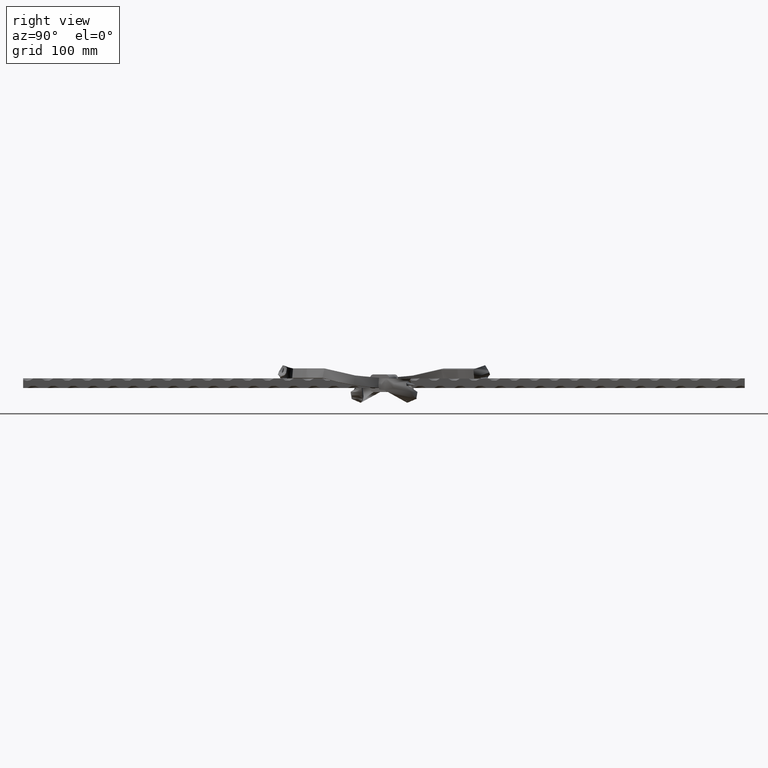
[diagram: clean part render]
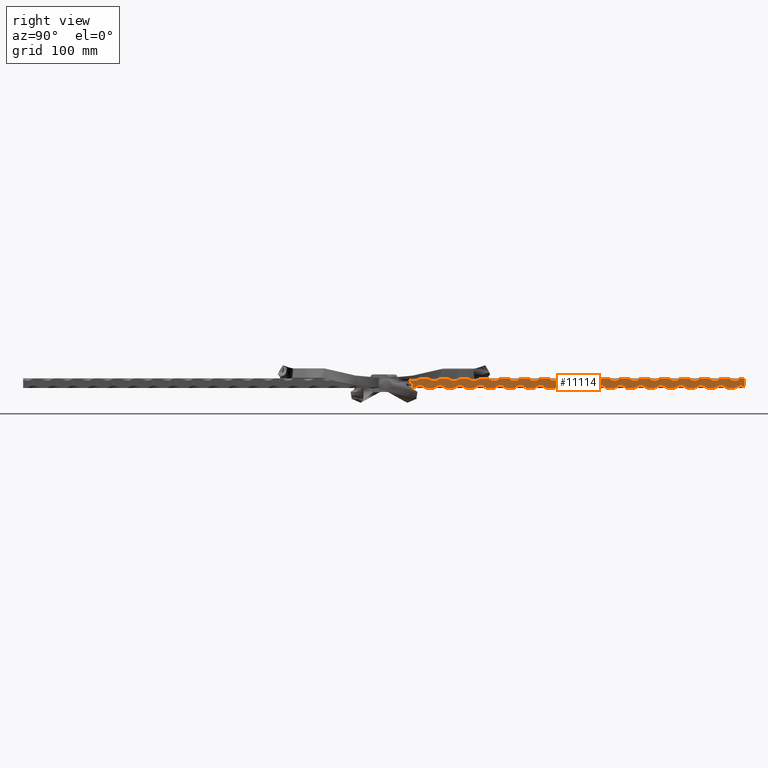
[diagram: same view with one face highlighted and labeled with its STEP entity id]
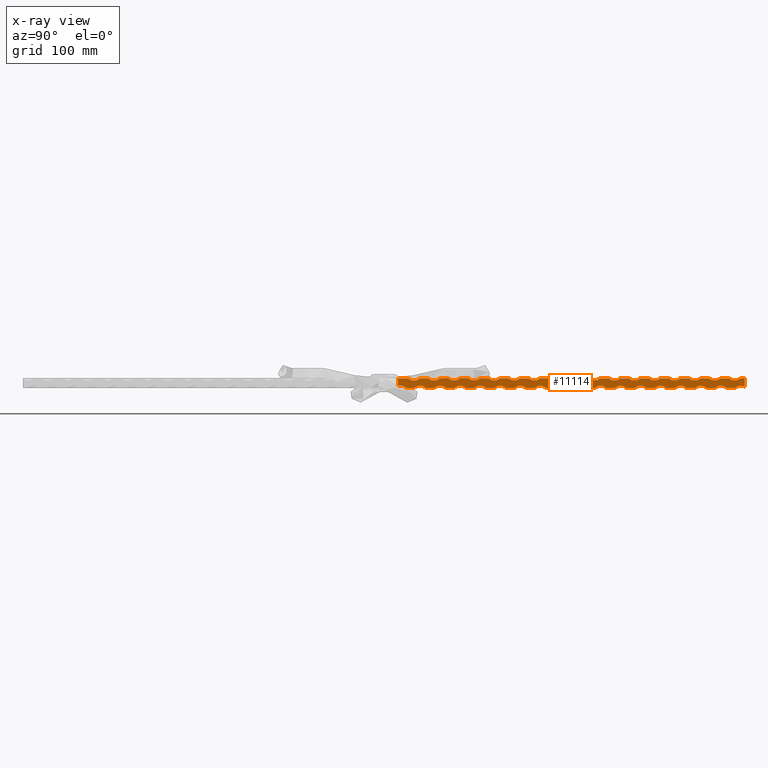
[diagram: x-ray of the same camera — body ghosted, the highlighted face saturated]
A machine part, right view. The second image highlights one B-rep face of the part: STEP entity #11114.
The next image is the same camera in x-ray: the body ghosted, the highlighted face saturated — about 0% of this face is hidden behind the body in this view.
In plain terms, the highlighted planar face has unit normal (-1, 0, 0).
Its self-contained STEP definition (entity closure, byte-faithful):
#22 = CARTESIAN_POINT ( 'NONE',  ( 5.999999999999996447, 29.99999999999997158, 6.000000000000000000 ) ) ;
#26 = DIRECTION ( 'NONE',  ( 0.000000000000000000, 0.000000000000000000, 1.000000000000000000 ) ) ;
#106 = CIRCLE ( 'NONE', #11605, 10.87500000000001599 ) ;
#113 = VECTOR ( 'NONE', #21962, 1000.000000000000000 ) ;
#127 = ORIENTED_EDGE ( 'NONE', *, *, #8262, .T. ) ;
#157 = CARTESIAN_POINT ( 'NONE',  ( 5.999999999999996447, 450.0000000000000000, 6.000000000000000000 ) ) ;
#202 = CARTESIAN_POINT ( 'NONE',  ( 5.999999999999996447, 450.0000000000000000, 6.000000000000000000 ) ) ;
#205 = DIRECTION ( 'NONE',  ( -0.000000000000000000, -1.000000000000000000, -0.000000000000000000 ) ) ;
#219 = EDGE_CURVE ( 'NONE', #2515, #10148, #2375, .T. ) ;
#228 = AXIS2_PLACEMENT_3D ( 'NONE', #13864, #6912, #20633 ) ;
#280 = VECTOR ( 'NONE', #17041, 1000.000000000000000 ) ;
#286 = CARTESIAN_POINT ( 'NONE',  ( 5.999999999999998224, 227.5000000000000000, -6.000000000000007994 ) ) ;
#321 = LINE ( 'NONE', #15717, #12004 ) ;
#350 = EDGE_CURVE ( 'NONE', #3260, #21573, #12450, .T. ) ;
#420 = VERTEX_POINT ( 'NONE', #7414 ) ;
#426 = CARTESIAN_POINT ( 'NONE',  ( 5.999999999999996447, 205.0000000000000000, 6.000000000000000000 ) ) ;
#427 = EDGE_CURVE ( 'NONE', #14409, #13763, #15630, .T. ) ;
#549 = VERTEX_POINT ( 'NONE', #19798 ) ;
#656 = CIRCLE ( 'NONE', #10370, 10.87500000000001599 ) ;
#771 = VERTEX_POINT ( 'NONE', #9507 ) ;
#809 = CARTESIAN_POINT ( 'NONE',  ( 5.999999999999996447, 187.5000000000000000, 13.87500000000001599 ) ) ;
#838 = ORIENTED_EDGE ( 'NONE', *, *, #21183, .T. ) ;
#888 = DIRECTION ( 'NONE',  ( -1.000000000000000000, 0.000000000000000000, 0.000000000000000000 ) ) ;
#896 = EDGE_CURVE ( 'NONE', #10493, #9114, #1802, .T. ) ;
#913 = CARTESIAN_POINT ( 'NONE',  ( 5.999999999999996447, 54.99999999999999289, 6.000000000000000000 ) ) ;
#937 = CARTESIAN_POINT ( 'NONE',  ( 5.999999999999996447, 450.0000000000000000, -6.000000000000000000 ) ) ;
#981 = EDGE_CURVE ( 'NONE', #15745, #6973, #4992, .T. ) ;
#1025 = VECTOR ( 'NONE', #13624, 1000.000000000000000 ) ;
#1044 = VECTOR ( 'NONE', #1092, 1000.000000000000000 ) ;
#1073 = CIRCLE ( 'NONE', #9758, 10.87500000000001243 ) ;
#1092 = DIRECTION ( 'NONE',  ( -0.000000000000000000, -1.000000000000000000, -0.000000000000000000 ) ) ;
#1101 = VERTEX_POINT ( 'NONE', #14431 ) ;
#1165 = DIRECTION ( 'NONE',  ( -1.000000000000000000, 0.000000000000000000, 0.000000000000000000 ) ) ;
#1298 = CARTESIAN_POINT ( 'NONE',  ( 5.999999999999996447, 44.99999999999998579, 6.000000000000000000 ) ) ;
#1322 = DIRECTION ( 'NONE',  ( -1.000000000000000000, 0.000000000000000000, 0.000000000000000000 ) ) ;
#1332 = ORIENTED_EDGE ( 'NONE', *, *, #219, .T. ) ;
#1340 = VECTOR ( 'NONE', #17221, 1000.000000000000000 ) ;
#1351 = CARTESIAN_POINT ( 'NONE',  ( 5.999999999999998224, 320.0000000000000000, -13.87500000000002665 ) ) ;
#1420 = VERTEX_POINT ( 'NONE', #12014 ) ;
#1514 = VERTEX_POINT ( 'NONE', #19157 ) ;
#1533 = EDGE_CURVE ( 'NONE', #3060, #8972, #9755, .T. ) ;
#1547 = CARTESIAN_POINT ( 'NONE',  ( 5.999999999999998224, 327.5000000000000000, -6.000000000000007994 ) ) ;
#1607 = VERTEX_POINT ( 'NONE', #12346 ) ;
#1657 = VERTEX_POINT ( 'NONE', #2009 ) ;
#1681 = EDGE_CURVE ( 'NONE', #8395, #1607, #12415, .T. ) ;
#1683 = DIRECTION ( 'NONE',  ( -0.000000000000000000, -1.000000000000000000, -0.000000000000000000 ) ) ;
#1717 = CIRCLE ( 'NONE', #4674, 10.87500000000001599 ) ;
#1729 = CARTESIAN_POINT ( 'NONE',  ( 5.999999999999996447, 137.4999999999999432, -6.000000000000007994 ) ) ;
#1741 = VERTEX_POINT ( 'NONE', #1298 ) ;
#1779 = CARTESIAN_POINT ( 'NONE',  ( 5.999999999999996447, 262.4999999999999432, 13.87500000000001599 ) ) ;
#1784 = DIRECTION ( 'NONE',  ( -1.000000000000000000, 0.000000000000000000, 0.000000000000000000 ) ) ;
#1802 = CIRCLE ( 'NONE', #3290, 10.87500000000001243 ) ;
#1857 = ORIENTED_EDGE ( 'NONE', *, *, #9166, .T. ) ;
#1882 = CARTESIAN_POINT ( 'NONE',  ( 5.999999999999996447, 450.0000000000000000, -6.000000000000000000 ) ) ;
#1920 = CARTESIAN_POINT ( 'NONE',  ( 5.999999999999996447, 112.4999999999999858, 13.87500000000001599 ) ) ;
#1957 = VERTEX_POINT ( 'NONE', #426 ) ;
#2009 = CARTESIAN_POINT ( 'NONE',  ( 5.999999999999996447, 337.4999999999999432, -6.000000000000007994 ) ) ;
#2042 = CARTESIAN_POINT ( 'NONE',  ( 5.999999999999998224, 44.99999999999998579, -13.87500000000002665 ) ) ;
#2059 = LINE ( 'NONE', #3820, #6587 ) ;
#2218 = LINE ( 'NONE', #11317, #20036 ) ;
#2226 = ORIENTED_EDGE ( 'NONE', *, *, #6616, .T. ) ;
#2233 = DIRECTION ( 'NONE',  ( -0.000000000000000000, -1.000000000000000000, -0.000000000000000000 ) ) ;
#2246 = DIRECTION ( 'NONE',  ( -1.000000000000000000, 0.000000000000000000, 0.000000000000000000 ) ) ;
#2279 = CARTESIAN_POINT ( 'NONE',  ( 5.999999999999998224, 70.00000000000000000, -13.87500000000002665 ) ) ;
#2325 = ORIENTED_EDGE ( 'NONE', *, *, #3092, .T. ) ;
#2351 = CIRCLE ( 'NONE', #13504, 10.87500000000001243 ) ;
#2375 = LINE ( 'NONE', #202, #18833 ) ;
#2394 = EDGE_CURVE ( 'NONE', #13681, #17072, #14528, .T. ) ;
#2412 = EDGE_CURVE ( 'NONE', #5062, #20194, #17998, .T. ) ;
#2436 = VECTOR ( 'NONE', #6003, 1000.000000000000000 ) ;
#2515 = VERTEX_POINT ( 'NONE', #22 ) ;
#2516 = CARTESIAN_POINT ( 'NONE',  ( 5.999999999999998224, 169.9999999999999716, -13.87500000000002665 ) ) ;
#2533 = DIRECTION ( 'NONE',  ( -1.000000000000000000, 0.000000000000000000, 0.000000000000000000 ) ) ;
#2536 = DIRECTION ( 'NONE',  ( 0.000000000000000000, 0.000000000000000000, 1.000000000000000000 ) ) ;
#2590 = AXIS2_PLACEMENT_3D ( 'NONE', #15388, #4926, #26 ) ;
#2673 = DIRECTION ( 'NONE',  ( -0.000000000000000000, -1.000000000000000000, -0.000000000000000000 ) ) ;
#2743 = DIRECTION ( 'NONE',  ( 0.000000000000000000, 0.000000000000000000, 1.000000000000000000 ) ) ;
#2769 = AXIS2_PLACEMENT_3D ( 'NONE', #7112, #8582, #17338 ) ;
#2788 = LINE ( 'NONE', #4874, #113 ) ;
#2806 = CARTESIAN_POINT ( 'NONE',  ( 5.999999999999996447, 129.9999999999999432, 6.000000000000000000 ) ) ;
#3060 = VERTEX_POINT ( 'NONE', #20431 ) ;
#3092 = EDGE_CURVE ( 'NONE', #13968, #8395, #13459, .T. ) ;
#3169 = LINE ( 'NONE', #4153, #1044 ) ;
#3192 = DIRECTION ( 'NONE',  ( -0.000000000000000000, -1.000000000000000000, -0.000000000000000000 ) ) ;
#3216 = CIRCLE ( 'NONE', #19813, 10.87500000000001599 ) ;
#3227 = AXIS2_PLACEMENT_3D ( 'NONE', #1351, #13158, #19981 ) ;
#3242 = AXIS2_PLACEMENT_3D ( 'NONE', #5650, #2246, #17538 ) ;
#3260 = VERTEX_POINT ( 'NONE', #19680 ) ;
#3290 = AXIS2_PLACEMENT_3D ( 'NONE', #16658, #6479, #19897 ) ;
#3314 = DIRECTION ( 'NONE',  ( -1.000000000000000000, 0.000000000000000000, 0.000000000000000000 ) ) ;
#3335 = CARTESIAN_POINT ( 'NONE',  ( 5.999999999999996447, 312.5000000000000000, -6.000000000000007994 ) ) ;
#3423 = LINE ( 'NONE', #20369, #5008 ) ;
#3462 = DIRECTION ( 'NONE',  ( -0.000000000000000000, -1.000000000000000000, -0.000000000000000000 ) ) ;
#3475 = CIRCLE ( 'NONE', #10894, 10.87500000000001243 ) ;
#3493 = ORIENTED_EDGE ( 'NONE', *, *, #20353, .F. ) ;
#3522 = DIRECTION ( 'NONE',  ( -0.000000000000000000, -1.000000000000000000, -0.000000000000000000 ) ) ;
#3559 = VERTEX_POINT ( 'NONE', #5552 ) ;
#3562 = DIRECTION ( 'NONE',  ( -1.000000000000000000, 0.000000000000000000, 0.000000000000000000 ) ) ;
#3634 = ORIENTED_EDGE ( 'NONE', *, *, #15512, .T. ) ;
#3665 = DIRECTION ( 'NONE',  ( -0.000000000000000000, -1.000000000000000000, -0.000000000000000000 ) ) ;
#3670 = EDGE_CURVE ( 'NONE', #14399, #20452, #20899, .T. ) ;
#3671 = CARTESIAN_POINT ( 'NONE',  ( 5.999999999999996447, 87.49999999999997158, 13.87500000000001599 ) ) ;
#3699 = CIRCLE ( 'NONE', #2590, 10.87500000000001243 ) ;
#3759 = AXIS2_PLACEMENT_3D ( 'NONE', #10213, #18822, #11829 ) ;
#3771 = CARTESIAN_POINT ( 'NONE',  ( 5.999999999999996447, 362.5000000000000000, -6.000000000000007994 ) ) ;
#3820 = CARTESIAN_POINT ( 'NONE',  ( 5.999999999999996447, 450.0000000000000000, -6.000000000000000000 ) ) ;
#3825 = CARTESIAN_POINT ( 'NONE',  ( 5.999999999999998224, 345.0000000000000000, -13.87500000000002665 ) ) ;
#3990 = CARTESIAN_POINT ( 'NONE',  ( 5.999999999999996447, 355.0000000000000000, 6.000000000000000000 ) ) ;
#3998 = ORIENTED_EDGE ( 'NONE', *, *, #5985, .T. ) ;
#4129 = EDGE_CURVE ( 'NONE', #7320, #3060, #2218, .T. ) ;
#4139 = DIRECTION ( 'NONE',  ( -1.000000000000000000, 0.000000000000000000, 0.000000000000000000 ) ) ;
#4153 = CARTESIAN_POINT ( 'NONE',  ( 5.999999999999996447, 450.0000000000000000, 6.000000000000000000 ) ) ;
#4159 = DIRECTION ( 'NONE',  ( 0.000000000000000000, 0.000000000000000000, 1.000000000000000000 ) ) ;
#4160 = DIRECTION ( 'NONE',  ( 0.000000000000000000, 0.000000000000000000, 1.000000000000000000 ) ) ;
#4217 = LINE ( 'NONE', #1882, #1025 ) ;
#4258 = CARTESIAN_POINT ( 'NONE',  ( 5.999999999999996447, 450.0000000000000000, 6.000000000000000000 ) ) ;
#4280 = CARTESIAN_POINT ( 'NONE',  ( 5.999999999999998224, 270.0000000000000000, -13.87500000000002665 ) ) ;
#4282 = AXIS2_PLACEMENT_3D ( 'NONE', #14385, #21438, #16532 ) ;
#4354 = CARTESIAN_POINT ( 'NONE',  ( 5.999999999999996447, 229.9999999999999716, 6.000000000000000000 ) ) ;
#4386 = EDGE_CURVE ( 'NONE', #12811, #11465, #12301, .T. ) ;
#4407 = VERTEX_POINT ( 'NONE', #13572 ) ;
#4438 = CARTESIAN_POINT ( 'NONE',  ( 5.999999999999996447, 237.5000000000000000, -6.000000000000007994 ) ) ;
#4441 = CARTESIAN_POINT ( 'NONE',  ( 5.999999999999996447, 380.0000000000000000, 6.000000000000000000 ) ) ;
#4488 = CARTESIAN_POINT ( 'NONE',  ( 5.999999999999996447, 450.0000000000000000, 6.000000000000000000 ) ) ;
#4516 = CIRCLE ( 'NONE', #9480, 10.87500000000001243 ) ;
#4525 = VERTEX_POINT ( 'NONE', #16699 ) ;
#4623 = ORIENTED_EDGE ( 'NONE', *, *, #11859, .F. ) ;
#4672 = CARTESIAN_POINT ( 'NONE',  ( 5.999999999999998224, 252.5000000000000000, -6.000000000000007994 ) ) ;
#4674 = AXIS2_PLACEMENT_3D ( 'NONE', #6655, #4857, #13247 ) ;
#4707 = EDGE_CURVE ( 'NONE', #18778, #8371, #2788, .T. ) ;
#4760 = DIRECTION ( 'NONE',  ( -0.000000000000000000, -1.000000000000000000, -0.000000000000000000 ) ) ;
#4772 = VERTEX_POINT ( 'NONE', #1547 ) ;
#4783 = LINE ( 'NONE', #937, #5865 ) ;
#4787 = CARTESIAN_POINT ( 'NONE',  ( 5.999999999999996447, 445.0000000000000000, 6.000000000000000000 ) ) ;
#4788 = DIRECTION ( 'NONE',  ( -0.000000000000000000, -1.000000000000000000, -0.000000000000000000 ) ) ;
#4857 = DIRECTION ( 'NONE',  ( -1.000000000000000000, 0.000000000000000000, 0.000000000000000000 ) ) ;
#4874 = CARTESIAN_POINT ( 'NONE',  ( 5.999999999999996447, 450.0000000000000000, 6.000000000000000000 ) ) ;
#4880 = ORIENTED_EDGE ( 'NONE', *, *, #9470, .T. ) ;
#4897 = ORIENTED_EDGE ( 'NONE', *, *, #18988, .T. ) ;
#4911 = ORIENTED_EDGE ( 'NONE', *, *, #4707, .T. ) ;
#4926 = DIRECTION ( 'NONE',  ( -1.000000000000000000, 0.000000000000000000, 0.000000000000000000 ) ) ;
#4945 = ORIENTED_EDGE ( 'NONE', *, *, #9115, .T. ) ;
#4992 = LINE ( 'NONE', #157, #15900 ) ;
#5008 = VECTOR ( 'NONE', #3522, 1000.000000000000000 ) ;
#5018 = CARTESIAN_POINT ( 'NONE',  ( 5.999999999999996447, 450.0000000000000000, 6.000000000000000000 ) ) ;
#5052 = EDGE_CURVE ( 'NONE', #1101, #7002, #21602, .T. ) ;
#5062 = VERTEX_POINT ( 'NONE', #4488 ) ;
#5070 = VERTEX_POINT ( 'NONE', #5995 ) ;
#5107 = CARTESIAN_POINT ( 'NONE',  ( 5.999999999999996447, 17.19408178538438392, 6.000000000000000000 ) ) ;
#5361 = DIRECTION ( 'NONE',  ( 0.000000000000000000, 0.000000000000000000, 1.000000000000000000 ) ) ;
#5413 = ORIENTED_EDGE ( 'NONE', *, *, #9608, .T. ) ;
#5550 = DIRECTION ( 'NONE',  ( 0.000000000000000000, 0.000000000000000000, -1.000000000000000000 ) ) ;
#5552 = CARTESIAN_POINT ( 'NONE',  ( 5.999999999999996447, 412.5000000000000000, -6.000000000000007994 ) ) ;
#5603 = CIRCLE ( 'NONE', #3759, 10.87500000000001599 ) ;
#5650 = CARTESIAN_POINT ( 'NONE',  ( 5.999999999999998224, 195.0000000000000000, -13.87500000000002665 ) ) ;
#5679 = DIRECTION ( 'NONE',  ( 0.000000000000000000, 0.000000000000000000, 1.000000000000000000 ) ) ;
#5684 = LINE ( 'NONE', #20329, #18704 ) ;
#5737 = VERTEX_POINT ( 'NONE', #15272 ) ;
#5761 = VECTOR ( 'NONE', #20072, 1000.000000000000000 ) ;
#5776 = CARTESIAN_POINT ( 'NONE',  ( 5.999999999999996447, 237.5000000000000000, 13.87500000000001599 ) ) ;
#5796 = EDGE_CURVE ( 'NONE', #19679, #9675, #11746, .T. ) ;
#5840 = CARTESIAN_POINT ( 'NONE',  ( 5.999999999999996447, 450.0000000000000000, 6.000000000000000000 ) ) ;
#5865 = VECTOR ( 'NONE', #5896, 1000.000000000000000 ) ;
#5869 = LINE ( 'NONE', #18320, #15144 ) ;
#5896 = DIRECTION ( 'NONE',  ( -0.000000000000000000, -1.000000000000000000, -0.000000000000000000 ) ) ;
#5985 = EDGE_CURVE ( 'NONE', #9540, #19465, #9632, .T. ) ;
#5995 = CARTESIAN_POINT ( 'NONE',  ( 5.999999999999996447, 430.0000000000000000, 6.000000000000000000 ) ) ;
#5999 = DIRECTION ( 'NONE',  ( -0.000000000000000000, -1.000000000000000000, -0.000000000000000000 ) ) ;
#6003 = DIRECTION ( 'NONE',  ( -0.000000000000000000, -1.000000000000000000, -0.000000000000000000 ) ) ;
#6012 = CARTESIAN_POINT ( 'NONE',  ( 5.999999999999998224, 19.99999999999996092, -13.87500000000002665 ) ) ;
#6055 = EDGE_CURVE ( 'NONE', #18971, #9540, #19478, .T. ) ;
#6071 = AXIS2_PLACEMENT_3D ( 'NONE', #14985, #18216, #21684 ) ;
#6131 = ORIENTED_EDGE ( 'NONE', *, *, #3670, .T. ) ;
#6289 = EDGE_CURVE ( 'NONE', #17072, #7320, #20765, .T. ) ;
#6318 = CARTESIAN_POINT ( 'NONE',  ( 5.999999999999996447, 412.5000000000000000, 13.87500000000001599 ) ) ;
#6378 = CARTESIAN_POINT ( 'NONE',  ( 5.999999999999996447, 387.5000000000000000, 13.87500000000001599 ) ) ;
#6412 = DIRECTION ( 'NONE',  ( 0.000000000000000000, 0.000000000000000000, 1.000000000000000000 ) ) ;
#6448 = PLANE ( 'NONE',  #14473 ) ;
#6479 = DIRECTION ( 'NONE',  ( -1.000000000000000000, 0.000000000000000000, 0.000000000000000000 ) ) ;
#6488 = AXIS2_PLACEMENT_3D ( 'NONE', #2516, #7567, #17950 ) ;
#6531 = DIRECTION ( 'NONE',  ( -1.000000000000000000, 0.000000000000000000, 0.000000000000000000 ) ) ;
#6553 = ORIENTED_EDGE ( 'NONE', *, *, #15671, .F. ) ;
#6587 = VECTOR ( 'NONE', #20823, 1000.000000000000000 ) ;
#6590 = AXIS2_PLACEMENT_3D ( 'NONE', #3671, #13761, #20661 ) ;
#6616 = EDGE_CURVE ( 'NONE', #8217, #10493, #7529, .T. ) ;
#6655 = CARTESIAN_POINT ( 'NONE',  ( 5.999999999999998224, 144.9999999999999716, -13.87500000000002665 ) ) ;
#6666 = ORIENTED_EDGE ( 'NONE', *, *, #1533, .T. ) ;
#6912 = DIRECTION ( 'NONE',  ( -1.000000000000000000, 0.000000000000000000, 0.000000000000000000 ) ) ;
#6973 = VERTEX_POINT ( 'NONE', #17069 ) ;
#7002 = VERTEX_POINT ( 'NONE', #15802 ) ;
#7051 = ORIENTED_EDGE ( 'NONE', *, *, #427, .F. ) ;
#7093 = AXIS2_PLACEMENT_3D ( 'NONE', #20991, #12610, #4159 ) ;
#7112 = CARTESIAN_POINT ( 'NONE',  ( 5.999999999999996447, 137.4999999999999432, 13.87500000000001599 ) ) ;
#7134 = EDGE_CURVE ( 'NONE', #16179, #16987, #20220, .T. ) ;
#7178 = EDGE_CURVE ( 'NONE', #771, #21458, #11974, .T. ) ;
#7244 = LINE ( 'NONE', #13297, #12532 ) ;
#7274 = DIRECTION ( 'NONE',  ( -0.000000000000000000, -1.000000000000000000, -0.000000000000000000 ) ) ;
#7281 = CARTESIAN_POINT ( 'NONE',  ( 5.999999999999998224, 152.4999999999999716, -6.000000000000007994 ) ) ;
#7320 = VERTEX_POINT ( 'NONE', #2806 ) ;
#7388 = VECTOR ( 'NONE', #5999, 1000.000000000000000 ) ;
#7414 = CARTESIAN_POINT ( 'NONE',  ( 5.999999999999996447, 395.0000000000000000, 6.000000000000000000 ) ) ;
#7441 = EDGE_CURVE ( 'NONE', #4525, #13763, #5603, .T. ) ;
#7493 = AXIS2_PLACEMENT_3D ( 'NONE', #2042, #19041, #10580 ) ;
#7529 = LINE ( 'NONE', #4258, #12261 ) ;
#7546 = DIRECTION ( 'NONE',  ( -0.000000000000000000, -1.000000000000000000, -0.000000000000000000 ) ) ;
#7561 = EDGE_CURVE ( 'NONE', #1420, #4407, #11950, .T. ) ;
#7567 = DIRECTION ( 'NONE',  ( -1.000000000000000000, 0.000000000000000000, 0.000000000000000000 ) ) ;
#7659 = VECTOR ( 'NONE', #1683, 1000.000000000000000 ) ;
#7700 = CARTESIAN_POINT ( 'NONE',  ( 5.999999999999996447, 450.0000000000000000, 6.000000000000000000 ) ) ;
#7729 = CIRCLE ( 'NONE', #8095, 10.87500000000001243 ) ;
#7781 = EDGE_CURVE ( 'NONE', #16283, #18722, #3216, .T. ) ;
#7797 = ORIENTED_EDGE ( 'NONE', *, *, #8411, .T. ) ;
#7866 = EDGE_CURVE ( 'NONE', #6973, #8217, #3475, .T. ) ;
#7880 = DIRECTION ( 'NONE',  ( 0.000000000000000000, 0.000000000000000000, 1.000000000000000000 ) ) ;
#7888 = DIRECTION ( 'NONE',  ( 0.000000000000000000, 0.000000000000000000, 1.000000000000000000 ) ) ;
#7912 = VERTEX_POINT ( 'NONE', #4441 ) ;
#7920 = CARTESIAN_POINT ( 'NONE',  ( 5.999999999999996447, 212.5000000000000000, 13.87500000000001599 ) ) ;
#7924 = DIRECTION ( 'NONE',  ( 0.000000000000000000, 0.000000000000000000, 1.000000000000000000 ) ) ;
#7969 = EDGE_CURVE ( 'NONE', #1741, #2515, #11196, .T. ) ;
#7983 = DIRECTION ( 'NONE',  ( -1.000000000000000000, 0.000000000000000000, 0.000000000000000000 ) ) ;
#8029 = LINE ( 'NONE', #20494, #20489 ) ;
#8095 = AXIS2_PLACEMENT_3D ( 'NONE', #6378, #1322, #7888 ) ;
#8177 = CARTESIAN_POINT ( 'NONE',  ( 5.999999999999996447, 450.0000000000000000, 6.000000000000000000 ) ) ;
#8217 = VERTEX_POINT ( 'NONE', #14063 ) ;
#8219 = EDGE_CURVE ( 'NONE', #19679, #21458, #19663, .T. ) ;
#8238 = CARTESIAN_POINT ( 'NONE',  ( 5.999999999999998224, 302.5000000000000000, -6.000000000000007994 ) ) ;
#8262 = EDGE_CURVE ( 'NONE', #20194, #5070, #4516, .T. ) ;
#8296 = AXIS2_PLACEMENT_3D ( 'NONE', #20535, #8753, #8610 ) ;
#8340 = EDGE_CURVE ( 'NONE', #12911, #9675, #4783, .T. ) ;
#8371 = VERTEX_POINT ( 'NONE', #19690 ) ;
#8384 = ORIENTED_EDGE ( 'NONE', *, *, #19767, .T. ) ;
#8395 = VERTEX_POINT ( 'NONE', #12664 ) ;
#8397 = VECTOR ( 'NONE', #18946, 1000.000000000000000 ) ;
#8408 = EDGE_LOOP ( 'NONE', ( #6553, #20081, #11900, #16803, #8807, #10731, #19352, #14559, #4623, #20885, #7051, #11699, #12278, #3634, #18248, #11938, #15629, #4880, #8862, #9469, #3493, #18092, #12871, #13561, #19261, #9161, #12152, #21999, #11718, #13934, #20867, #8606, #10778, #18987, #21529, #6131, #10994, #12933, #127, #4897, #8384, #1857, #11121, #838, #20103, #4911, #4945, #9141, #17026, #2226, #20783, #5413, #10161, #8978, #15867, #18545, #7797, #15515, #15360, #3998, #8649, #19790, #12024, #19363, #6666, #17915, #2325, #9526, #15544, #15749, #20385, #1332 ) ) ;
#8411 = EDGE_CURVE ( 'NONE', #18651, #1957, #1073, .T. ) ;
#8435 = CIRCLE ( 'NONE', #19151, 10.87500000000001599 ) ;
#8438 = VERTEX_POINT ( 'NONE', #10956 ) ;
#8557 = EDGE_CURVE ( 'NONE', #11465, #16179, #11176, .T. ) ;
#8577 = VECTOR ( 'NONE', #16403, 1000.000000000000000 ) ;
#8582 = DIRECTION ( 'NONE',  ( -1.000000000000000000, 0.000000000000000000, 0.000000000000000000 ) ) ;
#8606 = ORIENTED_EDGE ( 'NONE', *, *, #16016, .T. ) ;
#8610 = DIRECTION ( 'NONE',  ( 0.000000000000000000, 0.000000000000000000, 1.000000000000000000 ) ) ;
#8649 = ORIENTED_EDGE ( 'NONE', *, *, #19984, .T. ) ;
#8753 = DIRECTION ( 'NONE',  ( -1.000000000000000000, 0.000000000000000000, 0.000000000000000000 ) ) ;
#8773 = EDGE_CURVE ( 'NONE', #10368, #13470, #106, .T. ) ;
#8807 = ORIENTED_EDGE ( 'NONE', *, *, #16951, .F. ) ;
#8862 = ORIENTED_EDGE ( 'NONE', *, *, #17294, .F. ) ;
#8972 = VERTEX_POINT ( 'NONE', #11225 ) ;
#8978 = ORIENTED_EDGE ( 'NONE', *, *, #8557, .T. ) ;
#9114 = VERTEX_POINT ( 'NONE', #21820 ) ;
#9115 = EDGE_CURVE ( 'NONE', #8371, #15745, #11514, .T. ) ;
#9141 = ORIENTED_EDGE ( 'NONE', *, *, #981, .T. ) ;
#9161 = ORIENTED_EDGE ( 'NONE', *, *, #16593, .T. ) ;
#9166 = EDGE_CURVE ( 'NONE', #18256, #420, #5684, .T. ) ;
#9238 = VERTEX_POINT ( 'NONE', #286 ) ;
#9244 = EDGE_CURVE ( 'NONE', #3559, #15798, #20013, .T. ) ;
#9247 = LINE ( 'NONE', #18319, #5761 ) ;
#9275 = DIRECTION ( 'NONE',  ( -0.000000000000000000, -1.000000000000000000, -0.000000000000000000 ) ) ;
#9297 = DIRECTION ( 'NONE',  ( -1.000000000000000000, 0.000000000000000000, 0.000000000000000000 ) ) ;
#9382 = CIRCLE ( 'NONE', #19422, 10.87500000000001599 ) ;
#9469 = ORIENTED_EDGE ( 'NONE', *, *, #13094, .T. ) ;
#9470 = EDGE_CURVE ( 'NONE', #1514, #9238, #8435, .T. ) ;
#9480 = AXIS2_PLACEMENT_3D ( 'NONE', #15697, #19120, #19487 ) ;
#9507 = CARTESIAN_POINT ( 'NONE',  ( 5.999999999999996447, 262.5000000000000000, -6.000000000000007994 ) ) ;
#9526 = ORIENTED_EDGE ( 'NONE', *, *, #1681, .T. ) ;
#9540 = VERTEX_POINT ( 'NONE', #21508 ) ;
#9597 = CIRCLE ( 'NONE', #7093, 10.87500000000001243 ) ;
#9608 = EDGE_CURVE ( 'NONE', #9114, #12811, #12670, .T. ) ;
#9632 = LINE ( 'NONE', #21063, #16302 ) ;
#9647 = CARTESIAN_POINT ( 'NONE',  ( 5.999999999999996447, 94.99999999999997158, 6.000000000000000000 ) ) ;
#9675 = VERTEX_POINT ( 'NONE', #8238 ) ;
#9755 = CIRCLE ( 'NONE', #13653, 10.87500000000001243 ) ;
#9758 = AXIS2_PLACEMENT_3D ( 'NONE', #7920, #7983, #6412 ) ;
#9780 = DIRECTION ( 'NONE',  ( -0.000000000000000000, -1.000000000000000000, -0.000000000000000000 ) ) ;
#9982 = CARTESIAN_POINT ( 'NONE',  ( 5.999999999999996447, 254.9999999999999432, 6.000000000000000000 ) ) ;
#10010 = CARTESIAN_POINT ( 'NONE',  ( 5.999999999999996447, 450.0000000000000000, 6.000000000000000000 ) ) ;
#10014 = VECTOR ( 'NONE', #18681, 1000.000000000000000 ) ;
#10078 = CARTESIAN_POINT ( 'NONE',  ( 5.999999999999996447, 450.0000000000000000, 6.000000000000000000 ) ) ;
#10148 = VERTEX_POINT ( 'NONE', #5107 ) ;
#10161 = ORIENTED_EDGE ( 'NONE', *, *, #4386, .T. ) ;
#10181 = AXIS2_PLACEMENT_3D ( 'NONE', #18465, #3314, #18326 ) ;
#10213 = CARTESIAN_POINT ( 'NONE',  ( 5.999999999999998224, 120.0000000000000000, -13.87500000000002665 ) ) ;
#10249 = CARTESIAN_POINT ( 'NONE',  ( 5.999999999999998224, 27.49999999999996803, -6.000000000000007994 ) ) ;
#10264 = DIRECTION ( 'NONE',  ( -0.000000000000000000, -1.000000000000000000, -0.000000000000000000 ) ) ;
#10358 = CARTESIAN_POINT ( 'NONE',  ( 5.999999999999998224, 102.4999999999999858, -6.000000000000007994 ) ) ;
#10368 = VERTEX_POINT ( 'NONE', #12784 ) ;
#10370 = AXIS2_PLACEMENT_3D ( 'NONE', #15953, #12603, #2536 ) ;
#10384 = LINE ( 'NONE', #18820, #280 ) ;
#10431 = AXIS2_PLACEMENT_3D ( 'NONE', #4280, #9297, #14379 ) ;
#10492 = CARTESIAN_POINT ( 'NONE',  ( 5.999999999999996447, 370.0000000000000000, 6.000000000000000000 ) ) ;
#10493 = VERTEX_POINT ( 'NONE', #18356 ) ;
#10580 = DIRECTION ( 'NONE',  ( 0.000000000000000000, 0.000000000000000000, 1.000000000000000000 ) ) ;
#10629 = CARTESIAN_POINT ( 'NONE',  ( 5.999999999999996447, 450.0000000000000000, -6.000000000000000000 ) ) ;
#10651 = EDGE_CURVE ( 'NONE', #1420, #18722, #19831, .T. ) ;
#10686 = CARTESIAN_POINT ( 'NONE',  ( 5.999999999999996447, 220.0000000000000000, 6.000000000000000000 ) ) ;
#10731 = ORIENTED_EDGE ( 'NONE', *, *, #350, .T. ) ;
#10778 = ORIENTED_EDGE ( 'NONE', *, *, #13024, .F. ) ;
#10813 = VECTOR ( 'NONE', #7546, 1000.000000000000000 ) ;
#10894 = AXIS2_PLACEMENT_3D ( 'NONE', #14673, #1165, #2743 ) ;
#10956 = CARTESIAN_POINT ( 'NONE',  ( 5.999999999999996447, 420.0000000000000000, 6.000000000000000000 ) ) ;
#10961 = DIRECTION ( 'NONE',  ( -0.000000000000000000, -1.000000000000000000, -0.000000000000000000 ) ) ;
#10980 = CARTESIAN_POINT ( 'NONE',  ( 5.999999999999996447, 195.0000000000000000, 6.000000000000000000 ) ) ;
#10994 = ORIENTED_EDGE ( 'NONE', *, *, #15053, .F. ) ;
#11114 = ADVANCED_FACE ( 'NONE', ( #14249 ), #6448, .F. ) ;
#11121 = ORIENTED_EDGE ( 'NONE', *, *, #17976, .T. ) ;
#11176 = LINE ( 'NONE', #18237, #14617 ) ;
#11196 = CIRCLE ( 'NONE', #10181, 10.87500000000001243 ) ;
#11225 = CARTESIAN_POINT ( 'NONE',  ( 5.999999999999996447, 104.9999999999999858, 6.000000000000000000 ) ) ;
#11240 = AXIS2_PLACEMENT_3D ( 'NONE', #12457, #888, #4160 ) ;
#11317 = CARTESIAN_POINT ( 'NONE',  ( 5.999999999999996447, 450.0000000000000000, 6.000000000000000000 ) ) ;
#11335 = CARTESIAN_POINT ( 'NONE',  ( 5.999999999999996447, 450.0000000000000000, -6.000000000000000000 ) ) ;
#11465 = VERTEX_POINT ( 'NONE', #9982 ) ;
#11514 = CIRCLE ( 'NONE', #14176, 10.87500000000001243 ) ;
#11527 = LINE ( 'NONE', #19269, #17948 ) ;
#11605 = AXIS2_PLACEMENT_3D ( 'NONE', #19099, #17541, #20723 ) ;
#11647 = CARTESIAN_POINT ( 'NONE',  ( 5.999999999999996447, 270.0000000000000000, 6.000000000000000000 ) ) ;
#11650 = CARTESIAN_POINT ( 'NONE',  ( 5.999999999999996447, 337.5000000000000000, 13.87500000000001599 ) ) ;
#11684 = DIRECTION ( 'NONE',  ( -0.000000000000000000, -1.000000000000000000, -0.000000000000000000 ) ) ;
#11692 = LINE ( 'NONE', #11335, #2436 ) ;
#11699 = ORIENTED_EDGE ( 'NONE', *, *, #13393, .T. ) ;
#11718 = ORIENTED_EDGE ( 'NONE', *, *, #13337, .F. ) ;
#11746 = CIRCLE ( 'NONE', #8296, 10.87500000000001599 ) ;
#11813 = CARTESIAN_POINT ( 'NONE',  ( 5.999999999999998224, 437.5000000000000000, -6.000000000000007994 ) ) ;
#11829 = DIRECTION ( 'NONE',  ( 0.000000000000000000, 0.000000000000000000, 1.000000000000000000 ) ) ;
#11859 = EDGE_CURVE ( 'NONE', #4525, #13470, #12646, .T. ) ;
#11900 = ORIENTED_EDGE ( 'NONE', *, *, #10651, .F. ) ;
#11901 = VECTOR ( 'NONE', #10961, 1000.000000000000000 ) ;
#11938 = ORIENTED_EDGE ( 'NONE', *, *, #12608, .T. ) ;
#11950 = CIRCLE ( 'NONE', #7493, 10.87500000000001599 ) ;
#11974 = CIRCLE ( 'NONE', #10431, 10.87500000000001599 ) ;
#12004 = VECTOR ( 'NONE', #5550, 1000.000000000000000 ) ;
#12014 = CARTESIAN_POINT ( 'NONE',  ( 5.999999999999996447, 37.49999999999997868, -6.000000000000007994 ) ) ;
#12024 = ORIENTED_EDGE ( 'NONE', *, *, #6289, .T. ) ;
#12094 = VECTOR ( 'NONE', #17303, 1000.000000000000000 ) ;
#12152 = ORIENTED_EDGE ( 'NONE', *, *, #13575, .F. ) ;
#12218 = LINE ( 'NONE', #16028, #19935 ) ;
#12261 = VECTOR ( 'NONE', #2233, 1000.000000000000000 ) ;
#12278 = ORIENTED_EDGE ( 'NONE', *, *, #17213, .F. ) ;
#12301 = CIRCLE ( 'NONE', #12414, 10.87500000000001243 ) ;
#12346 = CARTESIAN_POINT ( 'NONE',  ( 5.999999999999996447, 70.00000000000000000, 6.000000000000000000 ) ) ;
#12414 = AXIS2_PLACEMENT_3D ( 'NONE', #1779, #3562, #15424 ) ;
#12415 = LINE ( 'NONE', #5840, #7388 ) ;
#12435 = CARTESIAN_POINT ( 'NONE',  ( 5.999999999999996447, 450.0000000000000000, -4.217587044140660879 ) ) ;
#12447 = DIRECTION ( 'NONE',  ( 0.000000000000000000, 0.000000000000000000, 1.000000000000000000 ) ) ;
#12450 = CIRCLE ( 'NONE', #19189, 10.87500000000001599 ) ;
#12452 = CARTESIAN_POINT ( 'NONE',  ( 5.999999999999996447, 450.0000000000000000, -6.000000000000000000 ) ) ;
#12457 = CARTESIAN_POINT ( 'NONE',  ( 5.999999999999996447, 162.4999999999999716, 13.87500000000001599 ) ) ;
#12532 = VECTOR ( 'NONE', #7924, 1000.000000000000000 ) ;
#12603 = DIRECTION ( 'NONE',  ( -1.000000000000000000, 0.000000000000000000, 0.000000000000000000 ) ) ;
#12608 = EDGE_CURVE ( 'NONE', #1101, #5737, #20317, .T. ) ;
#12610 = DIRECTION ( 'NONE',  ( -1.000000000000000000, 0.000000000000000000, 0.000000000000000000 ) ) ;
#12646 = LINE ( 'NONE', #10629, #8397 ) ;
#12664 = CARTESIAN_POINT ( 'NONE',  ( 5.999999999999996447, 79.99999999999995737, 6.000000000000000000 ) ) ;
#12670 = LINE ( 'NONE', #13190, #21442 ) ;
#12782 = VERTEX_POINT ( 'NONE', #913 ) ;
#12784 = CARTESIAN_POINT ( 'NONE',  ( 5.999999999999996447, 87.49999999999997158, -6.000000000000007994 ) ) ;
#12811 = VERTEX_POINT ( 'NONE', #11647 ) ;
#12812 = CARTESIAN_POINT ( 'NONE',  ( 5.999999999999996447, 144.9999999999999716, 6.000000000000000000 ) ) ;
#12839 = CARTESIAN_POINT ( 'NONE',  ( 5.999999999999996447, 287.5000000000000000, -6.000000000000007994 ) ) ;
#12871 = ORIENTED_EDGE ( 'NONE', *, *, #8219, .F. ) ;
#12911 = VERTEX_POINT ( 'NONE', #3335 ) ;
#12933 = ORIENTED_EDGE ( 'NONE', *, *, #2412, .T. ) ;
#13013 = DIRECTION ( 'NONE',  ( -0.000000000000000000, -1.000000000000000000, -0.000000000000000000 ) ) ;
#13024 = EDGE_CURVE ( 'NONE', #3559, #18447, #19771, .T. ) ;
#13083 = CIRCLE ( 'NONE', #6488, 10.87500000000001599 ) ;
#13094 = EDGE_CURVE ( 'NONE', #19017, #14718, #656, .T. ) ;
#13096 = CARTESIAN_POINT ( 'NONE',  ( 5.999999999999996447, 387.5000000000000000, -6.000000000000007994 ) ) ;
#13158 = DIRECTION ( 'NONE',  ( -1.000000000000000000, 0.000000000000000000, 0.000000000000000000 ) ) ;
#13190 = CARTESIAN_POINT ( 'NONE',  ( 5.999999999999996447, 450.0000000000000000, 6.000000000000000000 ) ) ;
#13247 = DIRECTION ( 'NONE',  ( 0.000000000000000000, 0.000000000000000000, 1.000000000000000000 ) ) ;
#13297 = CARTESIAN_POINT ( 'NONE',  ( 5.999999999999996447, 17.19408178538438392, -6.000000000000000000 ) ) ;
#13337 = EDGE_CURVE ( 'NONE', #16324, #13902, #17403, .T. ) ;
#13393 = EDGE_CURVE ( 'NONE', #14409, #16362, #1717, .T. ) ;
#13410 = CARTESIAN_POINT ( 'NONE',  ( 5.999999999999996447, 450.0000000000000000, 6.000000000000000000 ) ) ;
#13444 = CARTESIAN_POINT ( 'NONE',  ( 5.999999999999998224, 77.50000000000001421, -6.000000000000007994 ) ) ;
#13459 = CIRCLE ( 'NONE', #6590, 10.87500000000001243 ) ;
#13470 = VERTEX_POINT ( 'NONE', #10358 ) ;
#13504 = AXIS2_PLACEMENT_3D ( 'NONE', #6318, #15117, #18206 ) ;
#13561 = ORIENTED_EDGE ( 'NONE', *, *, #5796, .T. ) ;
#13572 = CARTESIAN_POINT ( 'NONE',  ( 5.999999999999998224, 52.49999999999999289, -6.000000000000007994 ) ) ;
#13575 = EDGE_CURVE ( 'NONE', #1657, #4772, #11527, .T. ) ;
#13624 = DIRECTION ( 'NONE',  ( -0.000000000000000000, -1.000000000000000000, -0.000000000000000000 ) ) ;
#13653 = AXIS2_PLACEMENT_3D ( 'NONE', #1920, #13805, #15664 ) ;
#13670 = VERTEX_POINT ( 'NONE', #16237 ) ;
#13681 = VERTEX_POINT ( 'NONE', #16581 ) ;
#13761 = DIRECTION ( 'NONE',  ( -1.000000000000000000, 0.000000000000000000, 0.000000000000000000 ) ) ;
#13763 = VERTEX_POINT ( 'NONE', #18302 ) ;
#13805 = DIRECTION ( 'NONE',  ( -1.000000000000000000, 0.000000000000000000, 0.000000000000000000 ) ) ;
#13864 = CARTESIAN_POINT ( 'NONE',  ( 5.999999999999998224, 420.0000000000000000, -13.87500000000002665 ) ) ;
#13902 = VERTEX_POINT ( 'NONE', #19807 ) ;
#13934 = ORIENTED_EDGE ( 'NONE', *, *, #21170, .T. ) ;
#13968 = VERTEX_POINT ( 'NONE', #9647 ) ;
#14063 = CARTESIAN_POINT ( 'NONE',  ( 5.999999999999996447, 305.0000000000000000, 6.000000000000000000 ) ) ;
#14176 = AXIS2_PLACEMENT_3D ( 'NONE', #11650, #1784, #17082 ) ;
#14249 = FACE_OUTER_BOUND ( 'NONE', #8408, .T. ) ;
#14379 = DIRECTION ( 'NONE',  ( 0.000000000000000000, 0.000000000000000000, 1.000000000000000000 ) ) ;
#14385 = CARTESIAN_POINT ( 'NONE',  ( 5.999999999999998224, 445.0000000000000000, -13.87500000000002665 ) ) ;
#14399 = VERTEX_POINT ( 'NONE', #11813 ) ;
#14409 = VERTEX_POINT ( 'NONE', #1729 ) ;
#14431 = CARTESIAN_POINT ( 'NONE',  ( 5.999999999999996447, 187.5000000000000000, -6.000000000000007994 ) ) ;
#14473 = AXIS2_PLACEMENT_3D ( 'NONE', #8177, #6531, #14820 ) ;
#14528 = LINE ( 'NONE', #10010, #7659 ) ;
#14559 = ORIENTED_EDGE ( 'NONE', *, *, #8773, .T. ) ;
#14617 = VECTOR ( 'NONE', #4760, 1000.000000000000000 ) ;
#14673 = CARTESIAN_POINT ( 'NONE',  ( 5.999999999999996447, 312.5000000000000000, 13.87500000000001599 ) ) ;
#14696 = VECTOR ( 'NONE', #13013, 1000.000000000000000 ) ;
#14718 = VERTEX_POINT ( 'NONE', #4672 ) ;
#14800 = CARTESIAN_POINT ( 'NONE',  ( 5.999999999999998224, 402.5000000000000000, -6.000000000000007994 ) ) ;
#14820 = DIRECTION ( 'NONE',  ( 0.000000000000000000, 0.000000000000000000, 1.000000000000000000 ) ) ;
#14854 = DIRECTION ( 'NONE',  ( -0.000000000000000000, -1.000000000000000000, -0.000000000000000000 ) ) ;
#14930 = LINE ( 'NONE', #5018, #8577 ) ;
#14950 = CARTESIAN_POINT ( 'NONE',  ( 5.999999999999996447, 450.0000000000000000, -6.000000000000000000 ) ) ;
#14985 = CARTESIAN_POINT ( 'NONE',  ( 5.999999999999998224, 395.0000000000000000, -13.87500000000002665 ) ) ;
#15053 = EDGE_CURVE ( 'NONE', #5062, #20452, #321, .T. ) ;
#15117 = DIRECTION ( 'NONE',  ( -1.000000000000000000, 0.000000000000000000, 0.000000000000000000 ) ) ;
#15131 = CARTESIAN_POINT ( 'NONE',  ( 5.999999999999996447, 245.0000000000000000, 6.000000000000000000 ) ) ;
#15144 = VECTOR ( 'NONE', #21785, 1000.000000000000000 ) ;
#15157 = EDGE_CURVE ( 'NONE', #16987, #18651, #14930, .T. ) ;
#15272 = CARTESIAN_POINT ( 'NONE',  ( 5.999999999999998224, 202.5000000000000000, -6.000000000000007994 ) ) ;
#15305 = EDGE_CURVE ( 'NONE', #1657, #13902, #9382, .T. ) ;
#15360 = ORIENTED_EDGE ( 'NONE', *, *, #6055, .T. ) ;
#15388 = CARTESIAN_POINT ( 'NONE',  ( 5.999999999999996447, 362.5000000000000000, 13.87500000000001599 ) ) ;
#15424 = DIRECTION ( 'NONE',  ( 0.000000000000000000, 0.000000000000000000, 1.000000000000000000 ) ) ;
#15512 = EDGE_CURVE ( 'NONE', #13670, #7002, #13083, .T. ) ;
#15515 = ORIENTED_EDGE ( 'NONE', *, *, #18566, .T. ) ;
#15525 = CARTESIAN_POINT ( 'NONE',  ( 5.999999999999996447, 169.9999999999999716, 6.000000000000000000 ) ) ;
#15544 = ORIENTED_EDGE ( 'NONE', *, *, #16454, .T. ) ;
#15629 = ORIENTED_EDGE ( 'NONE', *, *, #15797, .F. ) ;
#15630 = LINE ( 'NONE', #21208, #11901 ) ;
#15664 = DIRECTION ( 'NONE',  ( 0.000000000000000000, 0.000000000000000000, 1.000000000000000000 ) ) ;
#15671 = EDGE_CURVE ( 'NONE', #16283, #10148, #7244, .T. ) ;
#15697 = CARTESIAN_POINT ( 'NONE',  ( 5.999999999999996447, 437.5000000000000000, 13.87500000000001599 ) ) ;
#15717 = CARTESIAN_POINT ( 'NONE',  ( 5.999999999999996447, 450.0000000000000000, 6.000000000000000000 ) ) ;
#15745 = VERTEX_POINT ( 'NONE', #20274 ) ;
#15749 = ORIENTED_EDGE ( 'NONE', *, *, #20088, .T. ) ;
#15797 = EDGE_CURVE ( 'NONE', #1514, #5737, #8029, .T. ) ;
#15798 = VERTEX_POINT ( 'NONE', #19023 ) ;
#15802 = CARTESIAN_POINT ( 'NONE',  ( 5.999999999999998224, 177.5000000000000000, -6.000000000000007994 ) ) ;
#15846 = VERTEX_POINT ( 'NONE', #10492 ) ;
#15866 = DIRECTION ( 'NONE',  ( -1.000000000000000000, 0.000000000000000000, 0.000000000000000000 ) ) ;
#15867 = ORIENTED_EDGE ( 'NONE', *, *, #7134, .T. ) ;
#15900 = VECTOR ( 'NONE', #10264, 1000.000000000000000 ) ;
#15953 = CARTESIAN_POINT ( 'NONE',  ( 5.999999999999998224, 245.0000000000000000, -13.87500000000002665 ) ) ;
#16016 = EDGE_CURVE ( 'NONE', #20832, #18447, #19184, .T. ) ;
#16028 = CARTESIAN_POINT ( 'NONE',  ( 5.999999999999996447, 450.0000000000000000, -6.000000000000000000 ) ) ;
#16036 = DIRECTION ( 'NONE',  ( 0.000000000000000000, 0.000000000000000000, 1.000000000000000000 ) ) ;
#16179 = VERTEX_POINT ( 'NONE', #15131 ) ;
#16182 = CARTESIAN_POINT ( 'NONE',  ( 5.999999999999996447, 450.0000000000000000, -6.000000000000000000 ) ) ;
#16237 = CARTESIAN_POINT ( 'NONE',  ( 5.999999999999996447, 162.4999999999999716, -6.000000000000007994 ) ) ;
#16283 = VERTEX_POINT ( 'NONE', #20545 ) ;
#16302 = VECTOR ( 'NONE', #2673, 1000.000000000000000 ) ;
#16324 = VERTEX_POINT ( 'NONE', #3771 ) ;
#16353 = VECTOR ( 'NONE', #11684, 1000.000000000000000 ) ;
#16362 = VERTEX_POINT ( 'NONE', #7281 ) ;
#16403 = DIRECTION ( 'NONE',  ( -0.000000000000000000, -1.000000000000000000, -0.000000000000000000 ) ) ;
#16454 = EDGE_CURVE ( 'NONE', #1607, #12782, #9597, .T. ) ;
#16532 = DIRECTION ( 'NONE',  ( 0.000000000000000000, 0.000000000000000000, 1.000000000000000000 ) ) ;
#16548 = AXIS2_PLACEMENT_3D ( 'NONE', #809, #19581, #19369 ) ;
#16581 = CARTESIAN_POINT ( 'NONE',  ( 5.999999999999996447, 154.9999999999999716, 6.000000000000000000 ) ) ;
#16593 = EDGE_CURVE ( 'NONE', #12911, #4772, #21293, .T. ) ;
#16658 = CARTESIAN_POINT ( 'NONE',  ( 5.999999999999996447, 287.5000000000000000, 13.87500000000001599 ) ) ;
#16699 = CARTESIAN_POINT ( 'NONE',  ( 5.999999999999996447, 112.4999999999999858, -6.000000000000007994 ) ) ;
#16758 = LINE ( 'NONE', #17741, #1340 ) ;
#16803 = ORIENTED_EDGE ( 'NONE', *, *, #7561, .T. ) ;
#16886 = EDGE_CURVE ( 'NONE', #8972, #13968, #16758, .T. ) ;
#16951 = EDGE_CURVE ( 'NONE', #3260, #4407, #12218, .T. ) ;
#16987 = VERTEX_POINT ( 'NONE', #4354 ) ;
#17026 = ORIENTED_EDGE ( 'NONE', *, *, #7866, .T. ) ;
#17034 = EDGE_CURVE ( 'NONE', #14399, #15798, #11692, .T. ) ;
#17041 = DIRECTION ( 'NONE',  ( -0.000000000000000000, -1.000000000000000000, -0.000000000000000000 ) ) ;
#17069 = CARTESIAN_POINT ( 'NONE',  ( 5.999999999999996447, 320.0000000000000000, 6.000000000000000000 ) ) ;
#17072 = VERTEX_POINT ( 'NONE', #12812 ) ;
#17082 = DIRECTION ( 'NONE',  ( 0.000000000000000000, 0.000000000000000000, 1.000000000000000000 ) ) ;
#17213 = EDGE_CURVE ( 'NONE', #13670, #16362, #5869, .T. ) ;
#17221 = DIRECTION ( 'NONE',  ( -0.000000000000000000, -1.000000000000000000, -0.000000000000000000 ) ) ;
#17245 = CARTESIAN_POINT ( 'NONE',  ( 5.999999999999996447, 450.0000000000000000, -6.000000000000000000 ) ) ;
#17294 = EDGE_CURVE ( 'NONE', #19017, #9238, #10384, .T. ) ;
#17303 = DIRECTION ( 'NONE',  ( -0.000000000000000000, -1.000000000000000000, -0.000000000000000000 ) ) ;
#17338 = DIRECTION ( 'NONE',  ( 0.000000000000000000, 0.000000000000000000, 1.000000000000000000 ) ) ;
#17344 = DIRECTION ( 'NONE',  ( -0.000000000000000000, -1.000000000000000000, -0.000000000000000000 ) ) ;
#17403 = LINE ( 'NONE', #14950, #16353 ) ;
#17495 = VECTOR ( 'NONE', #9780, 1000.000000000000000 ) ;
#17538 = DIRECTION ( 'NONE',  ( 0.000000000000000000, 0.000000000000000000, 1.000000000000000000 ) ) ;
#17541 = DIRECTION ( 'NONE',  ( -1.000000000000000000, 0.000000000000000000, 0.000000000000000000 ) ) ;
#17550 = DIRECTION ( 'NONE',  ( -1.000000000000000000, 0.000000000000000000, 0.000000000000000000 ) ) ;
#17741 = CARTESIAN_POINT ( 'NONE',  ( 5.999999999999996447, 450.0000000000000000, 6.000000000000000000 ) ) ;
#17915 = ORIENTED_EDGE ( 'NONE', *, *, #16886, .T. ) ;
#17948 = VECTOR ( 'NONE', #9275, 1000.000000000000000 ) ;
#17950 = DIRECTION ( 'NONE',  ( 0.000000000000000000, 0.000000000000000000, 1.000000000000000000 ) ) ;
#17976 = EDGE_CURVE ( 'NONE', #420, #7912, #7729, .T. ) ;
#17998 = LINE ( 'NONE', #13410, #10014 ) ;
#18092 = ORIENTED_EDGE ( 'NONE', *, *, #7178, .T. ) ;
#18206 = DIRECTION ( 'NONE',  ( 0.000000000000000000, 0.000000000000000000, 1.000000000000000000 ) ) ;
#18216 = DIRECTION ( 'NONE',  ( -1.000000000000000000, 0.000000000000000000, 0.000000000000000000 ) ) ;
#18237 = CARTESIAN_POINT ( 'NONE',  ( 5.999999999999996447, 450.0000000000000000, 6.000000000000000000 ) ) ;
#18248 = ORIENTED_EDGE ( 'NONE', *, *, #5052, .F. ) ;
#18256 = VERTEX_POINT ( 'NONE', #21138 ) ;
#18302 = CARTESIAN_POINT ( 'NONE',  ( 5.999999999999998224, 127.5000000000000000, -6.000000000000007994 ) ) ;
#18319 = CARTESIAN_POINT ( 'NONE',  ( 5.999999999999996447, 450.0000000000000000, -6.000000000000000000 ) ) ;
#18320 = CARTESIAN_POINT ( 'NONE',  ( 5.999999999999996447, 450.0000000000000000, -6.000000000000000000 ) ) ;
#18326 = DIRECTION ( 'NONE',  ( 0.000000000000000000, 0.000000000000000000, 1.000000000000000000 ) ) ;
#18356 = CARTESIAN_POINT ( 'NONE',  ( 5.999999999999996447, 295.0000000000000000, 6.000000000000000000 ) ) ;
#18357 = VECTOR ( 'NONE', #17344, 1000.000000000000000 ) ;
#18358 = CARTESIAN_POINT ( 'NONE',  ( 5.999999999999998224, 277.4999999999999432, -6.000000000000007994 ) ) ;
#18447 = VERTEX_POINT ( 'NONE', #14800 ) ;
#18465 = CARTESIAN_POINT ( 'NONE',  ( 5.999999999999996447, 37.49999999999997868, 13.87500000000001599 ) ) ;
#18545 = ORIENTED_EDGE ( 'NONE', *, *, #15157, .T. ) ;
#18566 = EDGE_CURVE ( 'NONE', #1957, #18971, #3423, .T. ) ;
#18589 = EDGE_CURVE ( 'NONE', #15846, #18778, #3699, .T. ) ;
#18651 = VERTEX_POINT ( 'NONE', #10686 ) ;
#18681 = DIRECTION ( 'NONE',  ( -0.000000000000000000, -1.000000000000000000, -0.000000000000000000 ) ) ;
#18704 = VECTOR ( 'NONE', #3192, 1000.000000000000000 ) ;
#18722 = VERTEX_POINT ( 'NONE', #10249 ) ;
#18773 = LINE ( 'NONE', #7700, #10813 ) ;
#18778 = VERTEX_POINT ( 'NONE', #3990 ) ;
#18820 = CARTESIAN_POINT ( 'NONE',  ( 5.999999999999996447, 450.0000000000000000, -6.000000000000000000 ) ) ;
#18822 = DIRECTION ( 'NONE',  ( -1.000000000000000000, 0.000000000000000000, 0.000000000000000000 ) ) ;
#18826 = AXIS2_PLACEMENT_3D ( 'NONE', #5776, #2533, #12447 ) ;
#18833 = VECTOR ( 'NONE', #3462, 1000.000000000000000 ) ;
#18946 = DIRECTION ( 'NONE',  ( -0.000000000000000000, -1.000000000000000000, -0.000000000000000000 ) ) ;
#18953 = CARTESIAN_POINT ( 'NONE',  ( 5.999999999999998224, 370.0000000000000000, -13.87500000000002665 ) ) ;
#18971 = VERTEX_POINT ( 'NONE', #10980 ) ;
#18987 = ORIENTED_EDGE ( 'NONE', *, *, #9244, .T. ) ;
#18988 = EDGE_CURVE ( 'NONE', #5070, #8438, #3169, .T. ) ;
#19017 = VERTEX_POINT ( 'NONE', #4438 ) ;
#19023 = CARTESIAN_POINT ( 'NONE',  ( 5.999999999999998224, 427.5000000000000000, -6.000000000000007994 ) ) ;
#19041 = DIRECTION ( 'NONE',  ( -1.000000000000000000, 0.000000000000000000, 0.000000000000000000 ) ) ;
#19048 = CARTESIAN_POINT ( 'NONE',  ( 5.999999999999996447, 450.0000000000000000, -6.000000000000000000 ) ) ;
#19099 = CARTESIAN_POINT ( 'NONE',  ( 5.999999999999998224, 94.99999999999997158, -13.87500000000002665 ) ) ;
#19120 = DIRECTION ( 'NONE',  ( -1.000000000000000000, 0.000000000000000000, 0.000000000000000000 ) ) ;
#19151 = AXIS2_PLACEMENT_3D ( 'NONE', #19521, #21368, #7880 ) ;
#19157 = CARTESIAN_POINT ( 'NONE',  ( 5.999999999999996447, 212.5000000000000000, -6.000000000000007994 ) ) ;
#19184 = CIRCLE ( 'NONE', #6071, 10.87500000000001599 ) ;
#19189 = AXIS2_PLACEMENT_3D ( 'NONE', #2279, #15866, #5679 ) ;
#19261 = ORIENTED_EDGE ( 'NONE', *, *, #8340, .F. ) ;
#19269 = CARTESIAN_POINT ( 'NONE',  ( 5.999999999999996447, 450.0000000000000000, -6.000000000000000000 ) ) ;
#19279 = DIRECTION ( 'NONE',  ( 0.000000000000000000, 0.000000000000000000, 1.000000000000000000 ) ) ;
#19296 = EDGE_CURVE ( 'NONE', #10368, #21573, #4217, .T. ) ;
#19352 = ORIENTED_EDGE ( 'NONE', *, *, #19296, .F. ) ;
#19363 = ORIENTED_EDGE ( 'NONE', *, *, #4129, .T. ) ;
#19369 = DIRECTION ( 'NONE',  ( 0.000000000000000000, 0.000000000000000000, 1.000000000000000000 ) ) ;
#19422 = AXIS2_PLACEMENT_3D ( 'NONE', #3825, #4139, #19279 ) ;
#19432 = DIRECTION ( 'NONE',  ( -1.000000000000000000, 0.000000000000000000, 0.000000000000000000 ) ) ;
#19465 = VERTEX_POINT ( 'NONE', #15525 ) ;
#19478 = CIRCLE ( 'NONE', #16548, 10.87500000000001243 ) ;
#19487 = DIRECTION ( 'NONE',  ( 0.000000000000000000, 0.000000000000000000, 1.000000000000000000 ) ) ;
#19521 = CARTESIAN_POINT ( 'NONE',  ( 5.999999999999998224, 220.0000000000000000, -13.87500000000002665 ) ) ;
#19581 = DIRECTION ( 'NONE',  ( -1.000000000000000000, 0.000000000000000000, 0.000000000000000000 ) ) ;
#19663 = LINE ( 'NONE', #19048, #18357 ) ;
#19679 = VERTEX_POINT ( 'NONE', #12839 ) ;
#19680 = CARTESIAN_POINT ( 'NONE',  ( 5.999999999999996447, 62.50000000000000000, -6.000000000000007994 ) ) ;
#19690 = CARTESIAN_POINT ( 'NONE',  ( 5.999999999999996447, 345.0000000000000000, 6.000000000000000000 ) ) ;
#19767 = EDGE_CURVE ( 'NONE', #8438, #18256, #2351, .T. ) ;
#19771 = LINE ( 'NONE', #12452, #21634 ) ;
#19790 = ORIENTED_EDGE ( 'NONE', *, *, #2394, .T. ) ;
#19798 = CARTESIAN_POINT ( 'NONE',  ( 5.999999999999998224, 377.5000000000000000, -6.000000000000007994 ) ) ;
#19807 = CARTESIAN_POINT ( 'NONE',  ( 5.999999999999998224, 352.5000000000000568, -6.000000000000007994 ) ) ;
#19813 = AXIS2_PLACEMENT_3D ( 'NONE', #6012, #19432, #16036 ) ;
#19823 = CIRCLE ( 'NONE', #21054, 10.87500000000001599 ) ;
#19831 = LINE ( 'NONE', #17245, #12094 ) ;
#19849 = LINE ( 'NONE', #10078, #17495 ) ;
#19897 = DIRECTION ( 'NONE',  ( 0.000000000000000000, 0.000000000000000000, 1.000000000000000000 ) ) ;
#19935 = VECTOR ( 'NONE', #205, 1000.000000000000000 ) ;
#19981 = DIRECTION ( 'NONE',  ( 0.000000000000000000, 0.000000000000000000, 1.000000000000000000 ) ) ;
#19984 = EDGE_CURVE ( 'NONE', #19465, #13681, #20391, .T. ) ;
#20013 = CIRCLE ( 'NONE', #228, 10.87500000000001599 ) ;
#20036 = VECTOR ( 'NONE', #14854, 1000.000000000000000 ) ;
#20072 = DIRECTION ( 'NONE',  ( -0.000000000000000000, -1.000000000000000000, -0.000000000000000000 ) ) ;
#20081 = ORIENTED_EDGE ( 'NONE', *, *, #7781, .T. ) ;
#20088 = EDGE_CURVE ( 'NONE', #12782, #1741, #19849, .T. ) ;
#20103 = ORIENTED_EDGE ( 'NONE', *, *, #18589, .T. ) ;
#20194 = VERTEX_POINT ( 'NONE', #4787 ) ;
#20220 = CIRCLE ( 'NONE', #18826, 10.87500000000001243 ) ;
#20274 = CARTESIAN_POINT ( 'NONE',  ( 5.999999999999996447, 330.0000000000000000, 6.000000000000000000 ) ) ;
#20317 = CIRCLE ( 'NONE', #3242, 10.87500000000001599 ) ;
#20329 = CARTESIAN_POINT ( 'NONE',  ( 5.999999999999996447, 450.0000000000000000, 6.000000000000000000 ) ) ;
#20353 = EDGE_CURVE ( 'NONE', #771, #14718, #2059, .T. ) ;
#20369 = CARTESIAN_POINT ( 'NONE',  ( 5.999999999999996447, 450.0000000000000000, 6.000000000000000000 ) ) ;
#20385 = ORIENTED_EDGE ( 'NONE', *, *, #7969, .T. ) ;
#20391 = CIRCLE ( 'NONE', #11240, 10.87500000000001243 ) ;
#20431 = CARTESIAN_POINT ( 'NONE',  ( 5.999999999999996447, 120.0000000000000000, 6.000000000000000000 ) ) ;
#20452 = VERTEX_POINT ( 'NONE', #12435 ) ;
#20489 = VECTOR ( 'NONE', #3665, 1000.000000000000000 ) ;
#20494 = CARTESIAN_POINT ( 'NONE',  ( 5.999999999999996447, 450.0000000000000000, -6.000000000000000000 ) ) ;
#20535 = CARTESIAN_POINT ( 'NONE',  ( 5.999999999999998224, 295.0000000000000000, -13.87500000000002665 ) ) ;
#20545 = CARTESIAN_POINT ( 'NONE',  ( 5.999999999999998224, 17.19408178538439458, -3.368218952843437197 ) ) ;
#20633 = DIRECTION ( 'NONE',  ( 0.000000000000000000, 0.000000000000000000, 1.000000000000000000 ) ) ;
#20661 = DIRECTION ( 'NONE',  ( 0.000000000000000000, 0.000000000000000000, 1.000000000000000000 ) ) ;
#20723 = DIRECTION ( 'NONE',  ( 0.000000000000000000, 0.000000000000000000, 1.000000000000000000 ) ) ;
#20765 = CIRCLE ( 'NONE', #2769, 10.87500000000001243 ) ;
#20783 = ORIENTED_EDGE ( 'NONE', *, *, #896, .T. ) ;
#20823 = DIRECTION ( 'NONE',  ( -0.000000000000000000, -1.000000000000000000, -0.000000000000000000 ) ) ;
#20832 = VERTEX_POINT ( 'NONE', #13096 ) ;
#20867 = ORIENTED_EDGE ( 'NONE', *, *, #21004, .F. ) ;
#20885 = ORIENTED_EDGE ( 'NONE', *, *, #7441, .T. ) ;
#20899 = CIRCLE ( 'NONE', #4282, 10.87500000000001599 ) ;
#20991 = CARTESIAN_POINT ( 'NONE',  ( 5.999999999999996447, 62.50000000000000000, 13.87500000000001599 ) ) ;
#21004 = EDGE_CURVE ( 'NONE', #20832, #549, #9247, .T. ) ;
#21054 = AXIS2_PLACEMENT_3D ( 'NONE', #18953, #17550, #5361 ) ;
#21063 = CARTESIAN_POINT ( 'NONE',  ( 5.999999999999996447, 450.0000000000000000, 6.000000000000000000 ) ) ;
#21138 = CARTESIAN_POINT ( 'NONE',  ( 5.999999999999996447, 404.9999999999999432, 6.000000000000000000 ) ) ;
#21170 = EDGE_CURVE ( 'NONE', #16324, #549, #19823, .T. ) ;
#21183 = EDGE_CURVE ( 'NONE', #7912, #15846, #18773, .T. ) ;
#21208 = CARTESIAN_POINT ( 'NONE',  ( 5.999999999999996447, 450.0000000000000000, -6.000000000000000000 ) ) ;
#21293 = CIRCLE ( 'NONE', #3227, 10.87500000000001599 ) ;
#21368 = DIRECTION ( 'NONE',  ( -1.000000000000000000, 0.000000000000000000, 0.000000000000000000 ) ) ;
#21438 = DIRECTION ( 'NONE',  ( -1.000000000000000000, 0.000000000000000000, 0.000000000000000000 ) ) ;
#21442 = VECTOR ( 'NONE', #4788, 1000.000000000000000 ) ;
#21458 = VERTEX_POINT ( 'NONE', #18358 ) ;
#21508 = CARTESIAN_POINT ( 'NONE',  ( 5.999999999999996447, 180.0000000000000000, 6.000000000000000000 ) ) ;
#21529 = ORIENTED_EDGE ( 'NONE', *, *, #17034, .F. ) ;
#21573 = VERTEX_POINT ( 'NONE', #13444 ) ;
#21602 = LINE ( 'NONE', #16182, #14696 ) ;
#21634 = VECTOR ( 'NONE', #7274, 1000.000000000000000 ) ;
#21684 = DIRECTION ( 'NONE',  ( 0.000000000000000000, 0.000000000000000000, 1.000000000000000000 ) ) ;
#21785 = DIRECTION ( 'NONE',  ( -0.000000000000000000, -1.000000000000000000, -0.000000000000000000 ) ) ;
#21820 = CARTESIAN_POINT ( 'NONE',  ( 5.999999999999996447, 279.9999999999999432, 6.000000000000000000 ) ) ;
#21962 = DIRECTION ( 'NONE',  ( -0.000000000000000000, -1.000000000000000000, -0.000000000000000000 ) ) ;
#21999 = ORIENTED_EDGE ( 'NONE', *, *, #15305, .T. ) ;